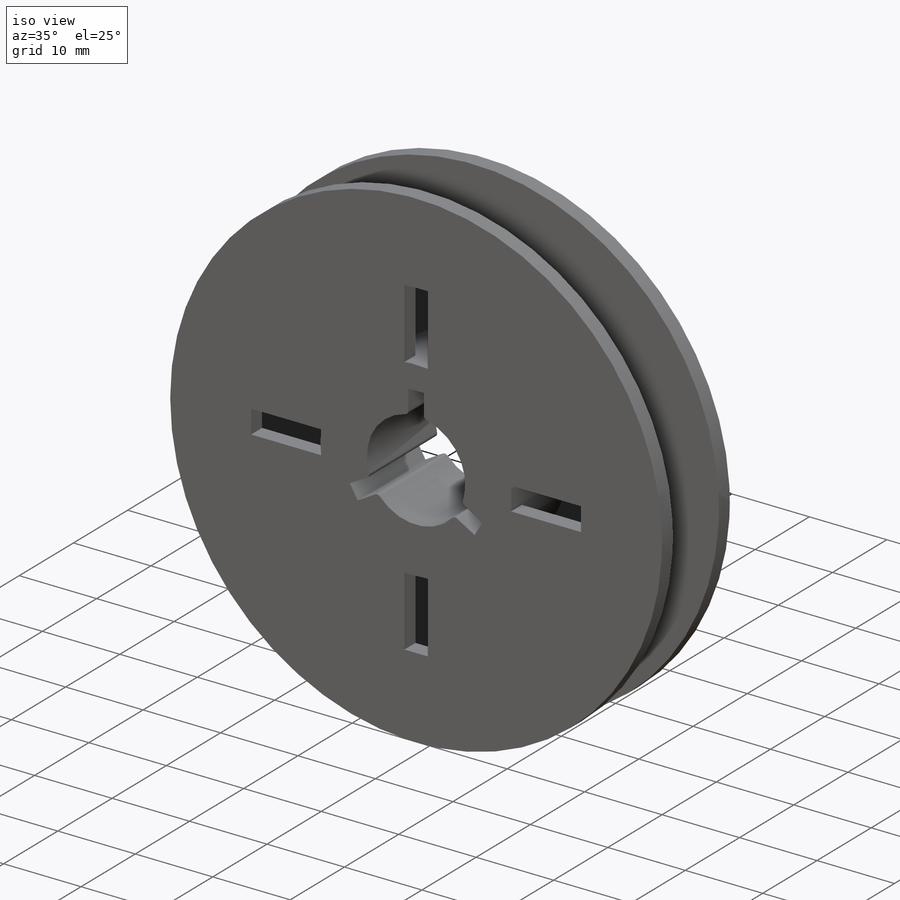
[diagram: iso view]
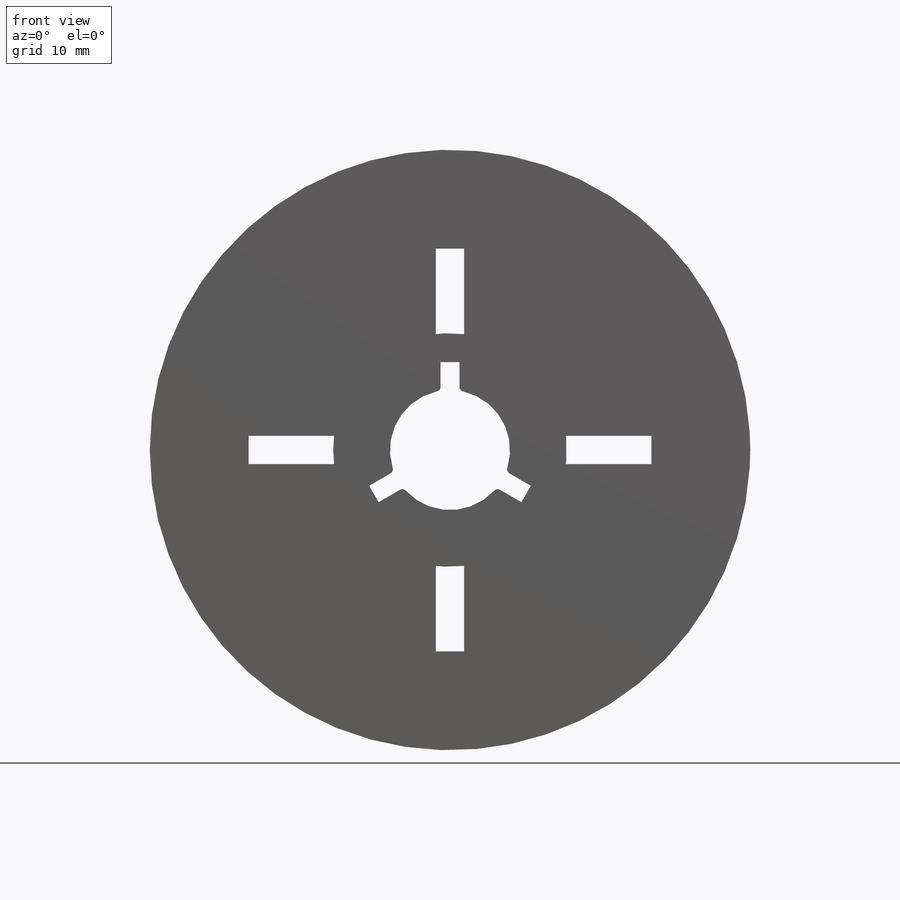
[diagram: front view]
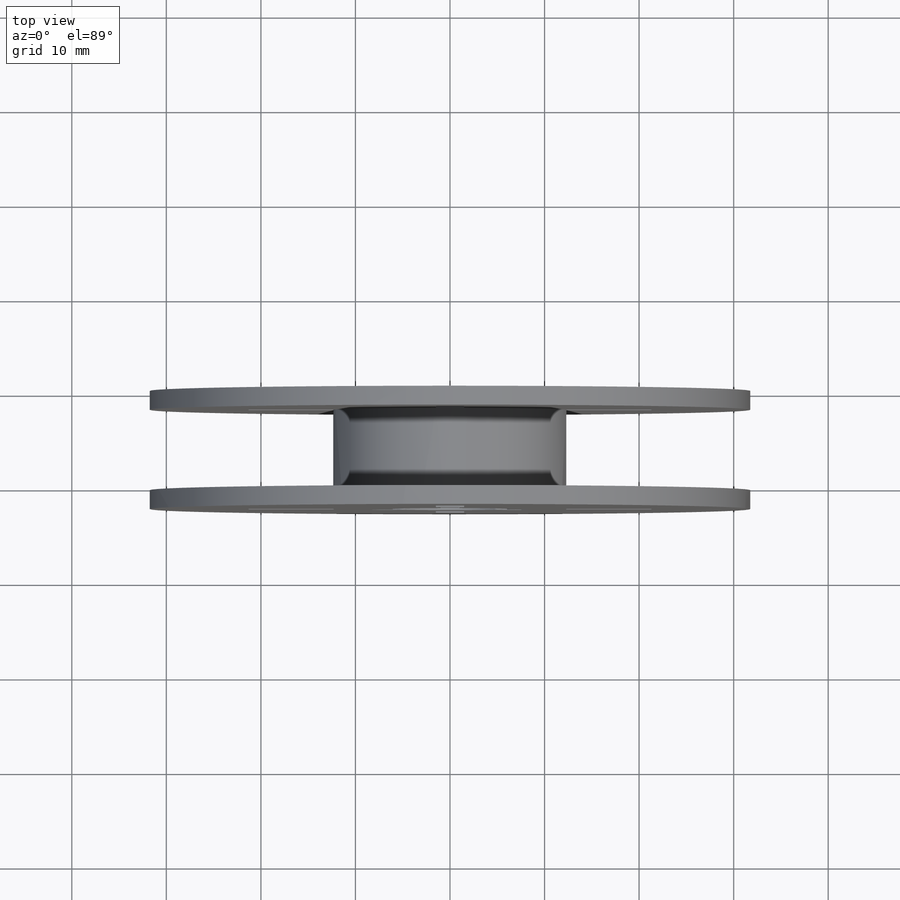
[diagram: top view]
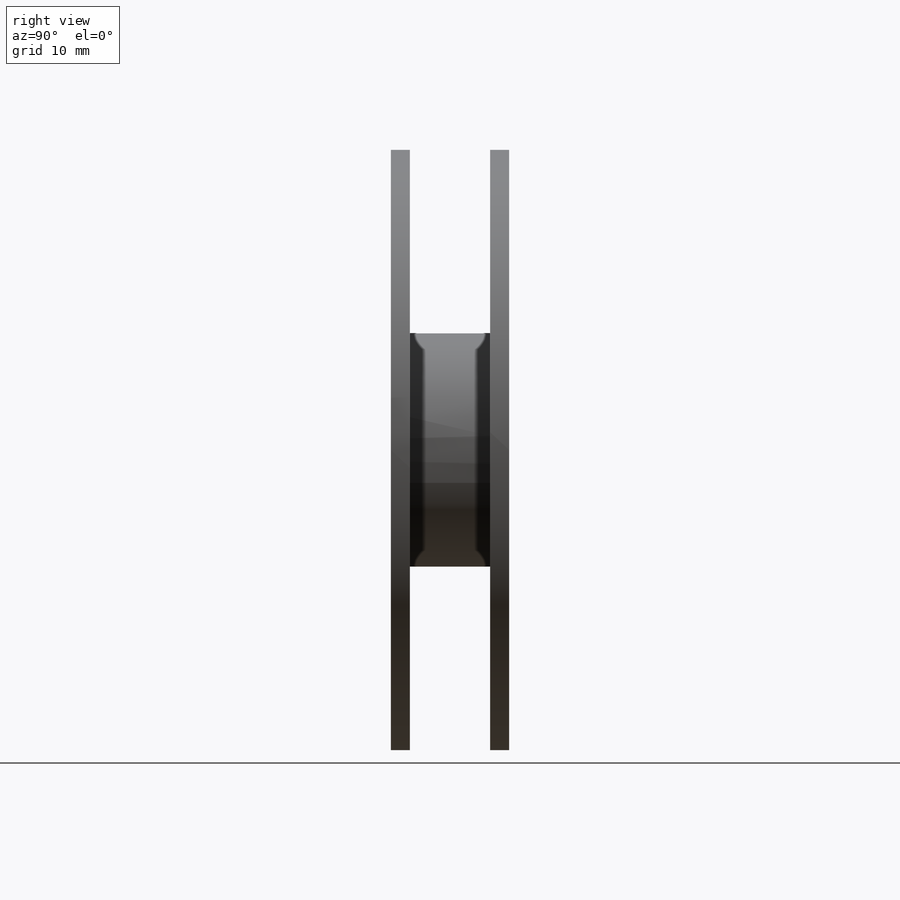
[diagram: right view]
SOLIDWORKS PART (.sldprt)
format: sldprt  version: not decoded by parser v0  size: 249,344 bytes
history: native  units: mm
features: sketch x3, extrude x2, material x1, mirror x1, cut_extrude x1 (+11 scaffold rows collapsed)
feature tree (19):
  scaffold x11  (default folders/planes/origin — collapsed)
  material  "ABS"
  sketch  "Sketch1"  dims[c1.D1=12.7mm c1.D2=63.5mm c1.D3=12.7mm c1.D4=24.7mm c2.D3=6.0mm c2.D4=9.0mm c2.D6=1.5mm c2.D7=1.5mm]
  extrude  "Boss-Extrude1"  Depth=2mm
  sketch  "Sketch3"  dims[D1=24.7mm]
  extrude  "Boss-Extrude3"  Depth=4.25mm
  mirror  "Mirror1"
  sketch  "Sketch4"  dims[c1.D1=~6.024875mm c1.D4=12.7mm c1.D5=12.7mm c1.D6=0.5mm c1.D7=0.5mm c2.D5=3.0mm c2.D2=1.0mm c2.D3=1.0mm c2.D1=3.0]
  cut_extrude  "Cut-Extrude1"  [1 undecoded]
decode coverage: 5 of 7 modeling features carry decoded parameters
note: ~ marks probable driven/reference dimensions
note: 1 parameter value undecoded
note: suppression state not decoded; provenance and decode notes live in map.json
